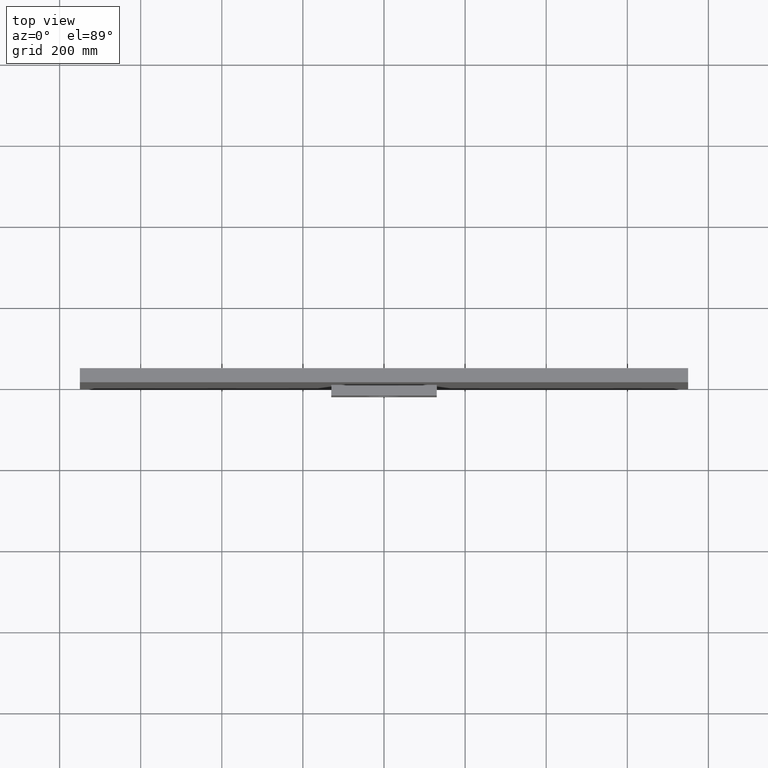
[diagram: clean part render]
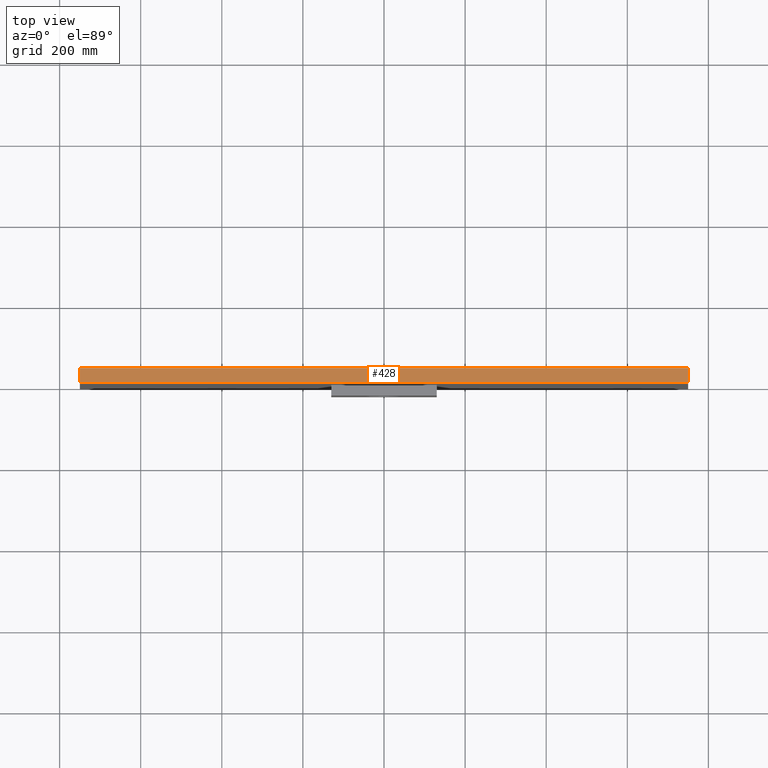
[diagram: same view with one face highlighted and labeled with its STEP entity id]
A machine part, top view. The second image highlights one B-rep face of the part: STEP entity #428.
In plain terms, the highlighted planar face has unit normal (0, 0, -1).
Its self-contained STEP definition (entity closure, byte-faithful):
#208 = DIRECTION ( 'NONE',  ( -0.0000000000000000000, -1.000000000000000000, -0.0000000000000000000 ) ) ;
#346 = ORIENTED_EDGE ( 'NONE', *, *, #2936, .T. ) ;
#411 = VECTOR ( 'NONE', #1830, 1000.000000000000000 ) ;
#428 = ADVANCED_FACE ( 'NONE', ( #2558 ), #2992, .F. ) ;
#439 = EDGE_LOOP ( 'NONE', ( #346, #2478, #673, #2880 ) ) ;
#673 = ORIENTED_EDGE ( 'NONE', *, *, #1298, .F. ) ;
#878 = LINE ( 'NONE', #1806, #411 ) ;
#926 = VERTEX_POINT ( 'NONE', #2176 ) ;
#966 = DIRECTION ( 'NONE',  ( 0.0000000000000000000, 0.0000000000000000000, -1.000000000000000000 ) ) ;
#1028 = VECTOR ( 'NONE', #2338, 1000.000000000000000 ) ;
#1031 = VECTOR ( 'NONE', #208, 1000.000000000000000 ) ;
#1064 = VERTEX_POINT ( 'NONE', #2309 ) ;
#1123 = DIRECTION ( 'NONE',  ( -1.000000000000000000, 0.0000000000000000000, -0.0000000000000000000 ) ) ;
#1153 = CARTESIAN_POINT ( 'NONE',  ( -749.9999999999998900, 0.0000000000000000000, 500.0000000000000000 ) ) ;
#1178 = LINE ( 'NONE', #1863, #1028 ) ;
#1293 = CARTESIAN_POINT ( 'NONE',  ( -749.9999999999998900, 35.00000000000000000, 500.0000000000000000 ) ) ;
#1298 = EDGE_CURVE ( 'NONE', #926, #1064, #1178, .T. ) ;
#1525 = VERTEX_POINT ( 'NONE', #2653 ) ;
#1758 = VERTEX_POINT ( 'NONE', #1153 ) ;
#1806 = CARTESIAN_POINT ( 'NONE',  ( 750.0000000000003400, 35.00000000000000000, 500.0000000000000000 ) ) ;
#1830 = DIRECTION ( 'NONE',  ( -0.0000000000000000000, -1.000000000000000000, -0.0000000000000000000 ) ) ;
#1841 = EDGE_CURVE ( 'NONE', #926, #1758, #2433, .T. ) ;
#1863 = CARTESIAN_POINT ( 'NONE',  ( -749.9999999999998900, 35.00000000000000000, 500.0000000000000000 ) ) ;
#1888 = VECTOR ( 'NONE', #2532, 1000.000000000000000 ) ;
#2176 = CARTESIAN_POINT ( 'NONE',  ( -749.9999999999998900, 35.00000000000000000, 500.0000000000000000 ) ) ;
#2309 = CARTESIAN_POINT ( 'NONE',  ( 750.0000000000003400, 35.00000000000000000, 500.0000000000000000 ) ) ;
#2338 = DIRECTION ( 'NONE',  ( 1.000000000000000000, 0.0000000000000000000, 0.0000000000000000000 ) ) ;
#2357 = EDGE_CURVE ( 'NONE', #1064, #1525, #878, .T. ) ;
#2433 = LINE ( 'NONE', #1293, #1031 ) ;
#2437 = AXIS2_PLACEMENT_3D ( 'NONE', #2745, #966, #1123 ) ;
#2463 = CARTESIAN_POINT ( 'NONE',  ( -749.9999999999998900, 0.0000000000000000000, 500.0000000000000000 ) ) ;
#2478 = ORIENTED_EDGE ( 'NONE', *, *, #2357, .F. ) ;
#2532 = DIRECTION ( 'NONE',  ( 1.000000000000000000, 0.0000000000000000000, 0.0000000000000000000 ) ) ;
#2558 = FACE_OUTER_BOUND ( 'NONE', #439, .T. ) ;
#2653 = CARTESIAN_POINT ( 'NONE',  ( 750.0000000000003400, 0.0000000000000000000, 500.0000000000000000 ) ) ;
#2745 = CARTESIAN_POINT ( 'NONE',  ( -749.9999999999998900, 35.00000000000000000, 500.0000000000000000 ) ) ;
#2880 = ORIENTED_EDGE ( 'NONE', *, *, #1841, .T. ) ;
#2936 = EDGE_CURVE ( 'NONE', #1758, #1525, #3032, .T. ) ;
#2992 = PLANE ( 'NONE',  #2437 ) ;
#3032 = LINE ( 'NONE', #2463, #1888 ) ;